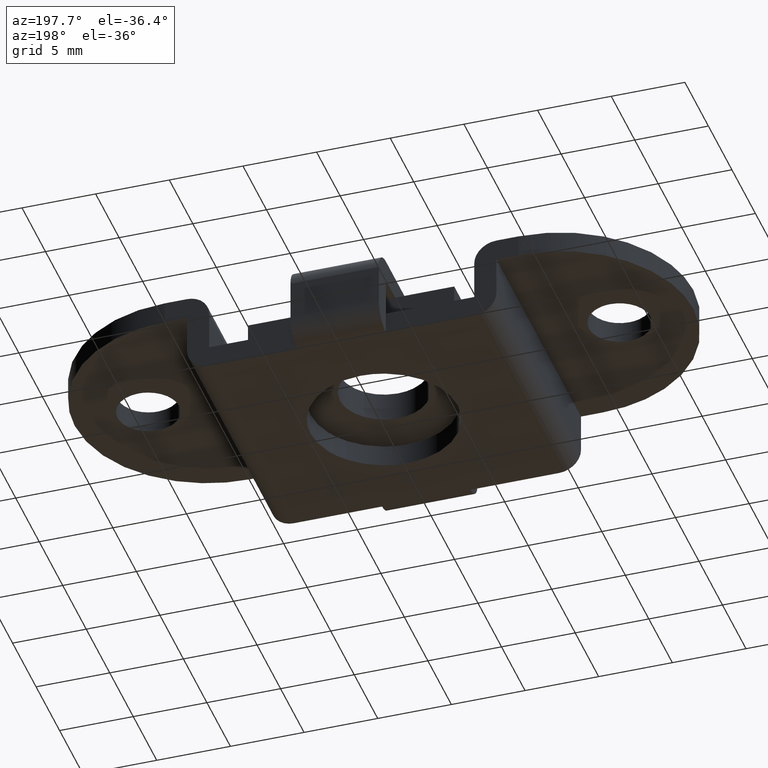
[diagram: clean part render]
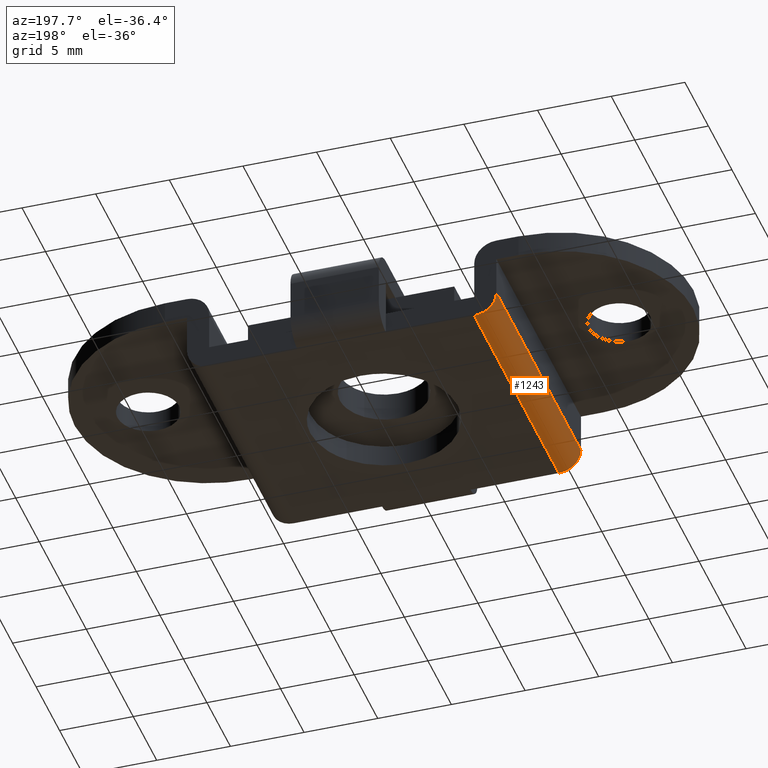
[diagram: same view with one face highlighted and labeled with its STEP entity id]
A machine part, auxiliary view. The second image highlights one B-rep face of the part: STEP entity #1243.
In plain terms, the highlighted face is a freeform B-spline surface patch.
Its self-contained STEP definition (entity closure, byte-faithful):
#1183=CARTESIAN_POINT('',(-8.960734577538188,9.450000000000001,0.000514012536664));
#1184=CARTESIAN_POINT('',(-8.960734577538188,-9.461250000000000,0.000514012536664));
#1185=CARTESIAN_POINT('',(-10.597136382891176,9.450000000000001,-0.042336676793987));
#1186=CARTESIAN_POINT('',(-10.597136382891176,-9.461250000000000,-0.042336676793987));
#1187=CARTESIAN_POINT('',(-10.497202197632800,9.450000000000001,1.591572809302282));
#1188=CARTESIAN_POINT('',(-10.497202197632800,-9.461250000000000,1.591572809302282));
#1196=(BOUNDED_SURFACE()B_SPLINE_SURFACE(1,2,((#1183,#1185,#1187),(#1184,#1186,#1188)),.UNSPECIFIED.,.F.,.F.,.U.)B_SPLINE_SURFACE_WITH_KNOTS((2,2),(3,3),(0.0,18.911249999999999),(0.0,2.640063185350996),.UNSPECIFIED.)GEOMETRIC_REPRESENTATION_ITEM()RATIONAL_B_SPLINE_SURFACE(((1.0,0.675590207615660,1.0),(1.0,0.675590207615660,1.0)))REPRESENTATION_ITEM('')SURFACE());
#1197=CARTESIAN_POINT('',(-9.0,9.0,0.0));
#1198=VERTEX_POINT('',#1197);
#1199=CARTESIAN_POINT('',(-10.500000000000000,9.0,1.500000000000000));
#1200=VERTEX_POINT('',#1199);
#1201=CARTESIAN_POINT('',(-9.0,9.0,0.0));
#1202=CARTESIAN_POINT('',(-9.177965652071983,9.000000000000009,-0.000150898832275));
#1203=CARTESIAN_POINT('',(-9.472375867247381,9.000000000000020,0.053063774533135));
#1204=CARTESIAN_POINT('',(-9.835443049500789,8.999999999999956,0.238629027900212));
#1205=CARTESIAN_POINT('',(-10.052718731605861,9.000000000000027,0.421470483990742));
#1206=CARTESIAN_POINT('',(-10.232057215900539,8.999999999999995,0.631976568299604));
#1207=CARTESIAN_POINT('',(-10.378076238081650,9.000000000000009,0.875538676074653));
#1208=CARTESIAN_POINT('',(-10.478852268027349,8.999999999999982,1.187070911514200));
#1209=CARTESIAN_POINT('',(-10.500010195741030,9.000000000000044,1.401825748368099));
#1210=CARTESIAN_POINT('',(-10.500000000000000,9.0,1.500000000000000));
#1211=B_SPLINE_CURVE_WITH_KNOTS('',3,(#1201,#1202,#1203,#1204,#1205,#1206,#1207,#1208,#1209,#1210),.UNSPECIFIED.,.F.,.U.,(4,1,1,1,1,1,1,4),(0.000000052720840,0.533827499167725,0.883582025427550,1.214912308790171,1.380582247977241,1.711931886899523,2.061685967823627,2.356209274317259),.UNSPECIFIED.);
#1212=EDGE_CURVE('',#1198,#1200,#1211,.T.);
#1213=ORIENTED_EDGE('',*,*,#1212,.F.);
#1214=CARTESIAN_POINT('',(-9.0,-9.0,0.0));
#1215=VERTEX_POINT('',#1214);
#1216=CARTESIAN_POINT('',(-9.0,-9.0,0.0));
#1217=CARTESIAN_POINT('',(-9.0,9.0,0.0));
#1218=QUASI_UNIFORM_CURVE('',1,(#1216,#1217),.UNSPECIFIED.,.F.,.U.);
#1219=EDGE_CURVE('',#1215,#1198,#1218,.T.);
#1220=ORIENTED_EDGE('',*,*,#1219,.F.);
#1221=CARTESIAN_POINT('',(-10.500000000000000,-9.0,1.500000000000000));
#1222=VERTEX_POINT('',#1221);
#1223=CARTESIAN_POINT('',(-10.500000000000000,-9.0,1.500000000000000));
#1224=CARTESIAN_POINT('',(-10.500077853395590,-9.000000000000020,1.346594578709531));
#1225=CARTESIAN_POINT('',(-10.458212316982831,-8.999999999999961,1.076654345951145));
#1226=CARTESIAN_POINT('',(-10.310985066832551,-9.000000000000046,0.749988412647674));
#1227=CARTESIAN_POINT('',(-10.130593145659860,-8.999999999999970,0.500427856349480));
#1228=CARTESIAN_POINT('',(-9.910388640892473,-9.000000000000032,0.293321482716703));
#1229=CARTESIAN_POINT('',(-9.624455766998914,-8.999999999999986,0.121928716199345));
#1230=CARTESIAN_POINT('',(-9.312931525695293,-9.000000000000007,0.021142916930301));
#1231=CARTESIAN_POINT('',(-9.098173605261327,-8.999999999999996,-0.000007046608160));
#1232=CARTESIAN_POINT('',(-9.0,-9.0,0.0));
#1233=B_SPLINE_CURVE_WITH_KNOTS('',3,(#1223,#1224,#1225,#1226,#1227,#1228,#1229,#1230,#1231,#1232),.UNSPECIFIED.,.F.,.U.,(4,1,1,1,1,1,1,4),(0.000000052721459,0.460196441647748,0.809953102175441,1.067671198810726,1.380582247976823,1.711931886899068,2.061685967823382,2.356209274317297),.UNSPECIFIED.);
#1234=EDGE_CURVE('',#1222,#1215,#1233,.T.);
#1235=ORIENTED_EDGE('',*,*,#1234,.F.);
#1236=CARTESIAN_POINT('',(-10.500000000000000,9.0,1.500000000000000));
#1237=CARTESIAN_POINT('',(-10.500000000000000,-9.0,1.500000000000000));
#1238=QUASI_UNIFORM_CURVE('',1,(#1236,#1237),.UNSPECIFIED.,.F.,.U.);
#1239=EDGE_CURVE('',#1200,#1222,#1238,.T.);
#1240=ORIENTED_EDGE('',*,*,#1239,.F.);
#1241=EDGE_LOOP('',(#1213,#1220,#1235,#1240));
#1242=FACE_OUTER_BOUND('',#1241,.T.);
#1243=ADVANCED_FACE('',(#1242),#1196,.T.);